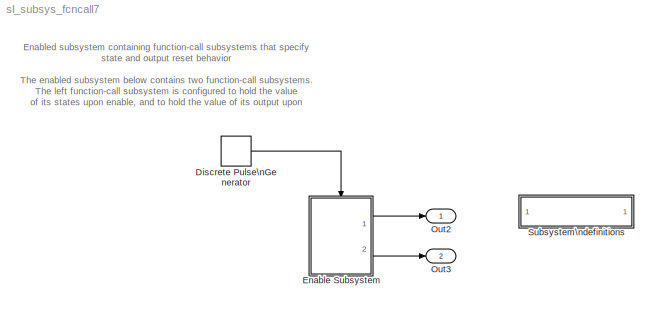
MODEL sl_subsys_fcncall7
KIND model
BLOCK [SubSystem]  Subsystem\ndefinitions
  MaskDisplay = disp('Subsystem\\ndefinitions')\n\n
  MaskIconFrame = on
  MaskIconOpaque = on
  MaskIconRotate = none
  MaskIconUnits = autoscale
  MinAlgLoopOccurrences = off
  OpenFcn = helpview([matlabroot,'/toolbox/simulink/simdemos/sl_subsys_definitions.html']);
  Ports = []
  PropExecContextAcrossSSBoundary = on
  RTWSystemCode = Auto
  TreatAsAtomicUnit = off
BLOCK [DiscretePulseGenerator] Discrete Pulse\nGenerator
  Period = 20
  Ports = [0, 1]
  PulseWidth = 10
  SampleTime = 0.1
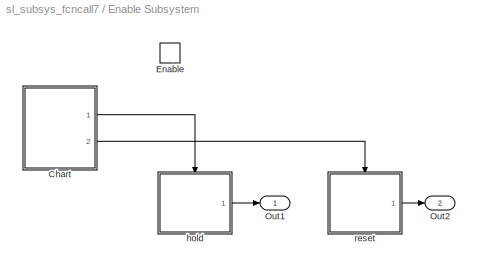
BLOCK [SubSystem] Enable Subsystem
  MinAlgLoopOccurrences = off
  Ports = [0, 2, 1]
  PropExecContextAcrossSSBoundary = on
  RTWSystemCode = Auto
  TreatAsAtomicUnit = on
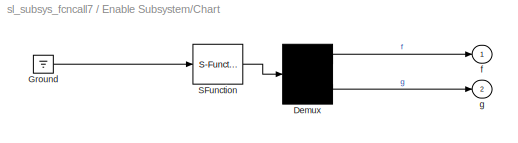
BLOCK [SubSystem] Enable Subsystem/Chart
  MaskDescription = Stateflow diagram
  MaskDisplay = plot(sf('Private','sfblk','xIcon'),sf('Private','sfblk','yIcon'));text(0.5,0,sf('Private', 'sfblk', 'tIcon'),'HorizontalAl','Center','VerticalAl','Bottom');
  MaskIconFrame = off
  MaskIconOpaque = off
  MaskIconRotate = none
  MaskIconUnits = autoscale
  MaskSelfModifiable = on
  MaskType = Stateflow
  MinAlgLoopOccurrences = off
  Ports = [0, 2]
  PropExecContextAcrossSSBoundary = on
  RTWSystemCode = Auto
  TreatAsAtomicUnit = off
BLOCK [Demux] Enable Subsystem/Chart/ Demux 
  Outputs = 2
  Ports = [1, 2]
BLOCK [Ground] Enable Subsystem/Chart/ Ground 
BLOCK [S-Function] Enable Subsystem/Chart/ SFunction 
  FunctionName = sf_sfun
  PortCounts = [1 1]
  Ports = [1, 1]
  Tag = Stateflow S-Function sl_subsys_fcncall7 2
BLOCK [Outport] Enable Subsystem/Chart/f
  BusOutputAsStruct = off
  IconDisplay = Port number
BLOCK [Outport] Enable Subsystem/Chart/g
  BusOutputAsStruct = off
  IconDisplay = Port number
  Port = 2
BLOCK [EnablePort] Enable Subsystem/Enable
  Ports = []
BLOCK [Outport] Enable Subsystem/Out1
  BusOutputAsStruct = off
  IconDisplay = Port number
BLOCK [Outport] Enable Subsystem/Out2
  BusOutputAsStruct = off
  IconDisplay = Port number
  Port = 2
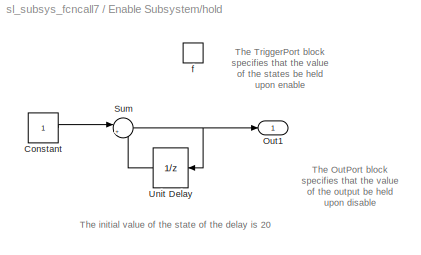
BLOCK [SubSystem] Enable Subsystem/hold
  MinAlgLoopOccurrences = off
  Ports = [0, 1, 0, 1]
  PropExecContextAcrossSSBoundary = on
  RTWSystemCode = Auto
  TreatAsAtomicUnit = on
BLOCK [Constant] Enable Subsystem/hold/Constant
BLOCK [Outport] Enable Subsystem/hold/Out1
  BusOutputAsStruct = off
  IconDisplay = Port number
BLOCK [Sum] Enable Subsystem/hold/Sum
  IconShape = round
  Inputs = |++
  Ports = [2, 1]
BLOCK [UnitDelay] Enable Subsystem/hold/Unit Delay
  SampleTime = -1
  X0 = 20
BLOCK [TriggerPort] Enable Subsystem/hold/f
  Ports = []
  StatesWhenEnabling = held
  TriggerType = function-call
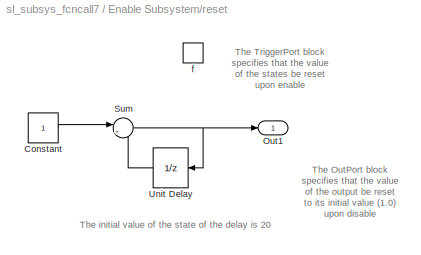
BLOCK [SubSystem] Enable Subsystem/reset
  MinAlgLoopOccurrences = off
  Ports = [0, 1, 0, 1]
  PropExecContextAcrossSSBoundary = on
  RTWSystemCode = Auto
  TreatAsAtomicUnit = on
BLOCK [Constant] Enable Subsystem/reset/Constant
BLOCK [Outport] Enable Subsystem/reset/Out1
  BusOutputAsStruct = off
  IconDisplay = Port number
  InitialOutput = 1
  OutputWhenDisabled = reset
BLOCK [Sum] Enable Subsystem/reset/Sum
  IconShape = round
  Inputs = |++
  Ports = [2, 1]
BLOCK [UnitDelay] Enable Subsystem/reset/Unit Delay
  SampleTime = -1
  X0 = 20
BLOCK [TriggerPort] Enable Subsystem/reset/f
  Ports = []
  StatesWhenEnabling = reset
  TriggerType = function-call
BLOCK [Outport] Out2
  BusOutputAsStruct = off
  IconDisplay = Port number
BLOCK [Outport] Out3
  BusOutputAsStruct = off
  IconDisplay = Port number
  Port = 2
ANNOTATION (root): Enabled subsystem containing function-call subsystems that specify \nstate and output reset behavior\n\nThe enabled subsystem below contains two function-call subsystems. \nThe left function-call subsystem is configured to hold the value \nof its states upon enable, and to hold the value of its output upon \ndisable. The right function-call subsystem is configured to reset \nthe value of its state...<+66ch>
ANNOTATION Enable Subsystem/hold: The OutPort block\nspecifies that the value\nof the output be held\nupon disable
ANNOTATION Enable Subsystem/hold: The TriggerPort block \nspecifies that the value\nof the states be held\nupon enable
ANNOTATION Enable Subsystem/hold: The initial value of the state of the delay is 20
ANNOTATION Enable Subsystem/reset: The OutPort block\nspecifies that the value\nof the output be reset\nto its initial value (1.0)\nupon disable
ANNOTATION Enable Subsystem/reset: The TriggerPort block \nspecifies that the value\nof the states be reset\nupon enable
ANNOTATION Enable Subsystem/reset: The initial value of the state of the delay is 20
LINE Discrete Pulse\nGenerator:1 -> Enable Subsystem:enable
LINE Enable Subsystem/Chart/ Demux :1 -> Enable Subsystem/Chart/f:1
LINE Enable Subsystem/Chart/ Demux :2 -> Enable Subsystem/Chart/g:1
LINE Enable Subsystem/Chart/ Ground :1 -> Enable Subsystem/Chart/ SFunction :1
LINE Enable Subsystem/Chart/ SFunction :1 -> Enable Subsystem/Chart/ Demux :1
LINE Enable Subsystem/Chart:1 -> Enable Subsystem/hold:trigger
LINE Enable Subsystem/Chart:2 -> Enable Subsystem/reset:trigger
LINE Enable Subsystem/hold/Constant:1 -> Enable Subsystem/hold/Sum:1
NET Enable Subsystem/hold/Sum:1 -> Enable Subsystem/hold/Out1:1, Enable Subsystem/hold/Unit Delay:1
LINE Enable Subsystem/hold/Unit Delay:1 -> Enable Subsystem/hold/Sum:2
LINE Enable Subsystem/hold:1 -> Enable Subsystem/Out1:1
LINE Enable Subsystem/reset/Constant:1 -> Enable Subsystem/reset/Sum:1
NET Enable Subsystem/reset/Sum:1 -> Enable Subsystem/reset/Out1:1, Enable Subsystem/reset/Unit Delay:1
LINE Enable Subsystem/reset/Unit Delay:1 -> Enable Subsystem/reset/Sum:2
LINE Enable Subsystem/reset:1 -> Enable Subsystem/Out2:1
LINE Enable Subsystem:1 -> Out2:1
LINE Enable Subsystem:2 -> Out3:1
note: NET lines group one-source signal fan-out (src -> all destinations, sorted); 1:1 wires keep LINE
CHART Enable Subsystem/Chart states=2 transitions=3
  STATE_LABEL 'one/\\nentry: f;'
  STATE_LABEL 'two/\\nentry: g;'
